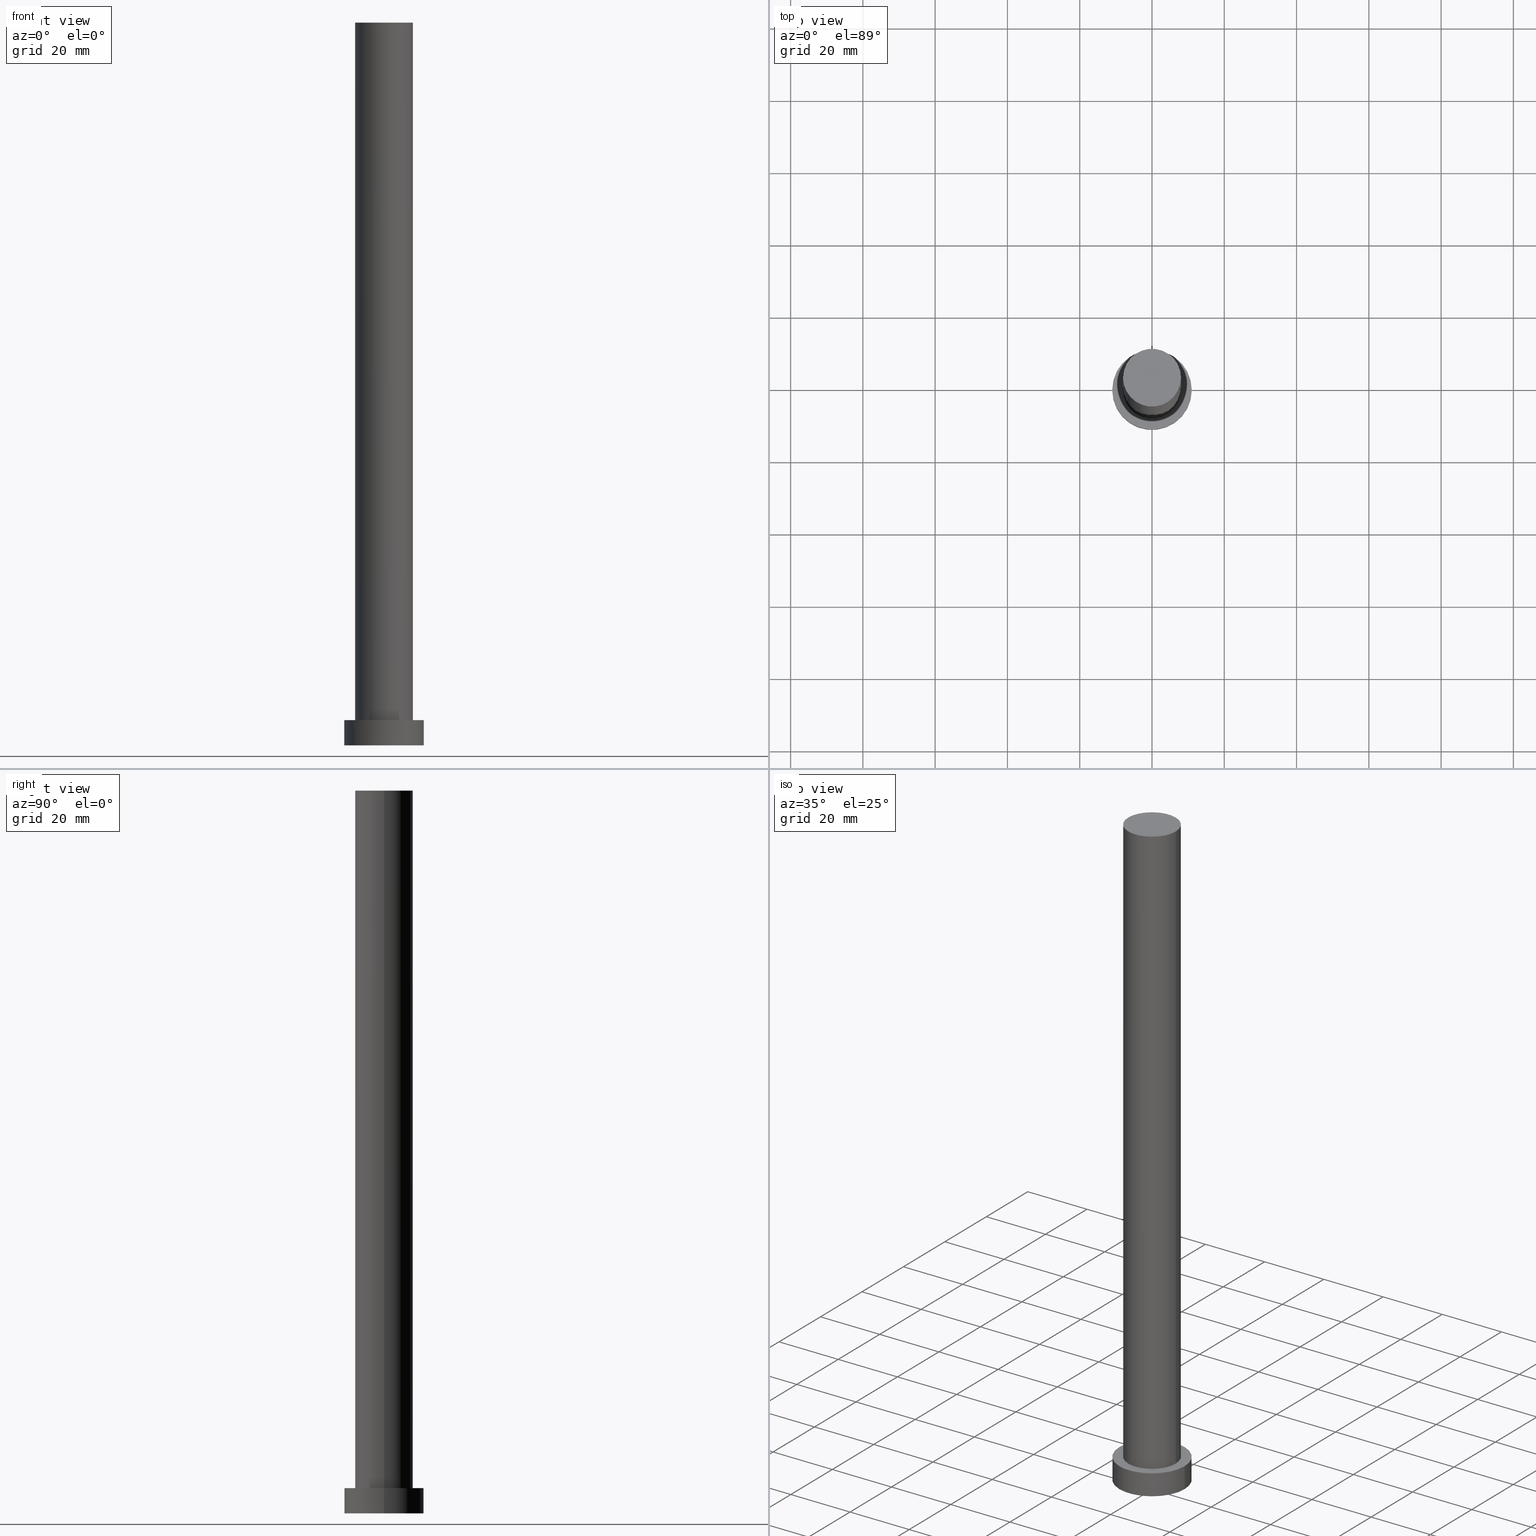
[diagram: canonical four-view strip — front | top / right | iso, engineering-drawing reading convention]
A machine part, canonical four-view strip (front | top / right | iso — engineering-drawing reading convention). The complete STEP part file that produces these views, byte-faithful:
ISO-10303-21;
HEADER;
FILE_DESCRIPTION (( 'STEP AP203' ),
    '1' );
FILE_NAME ('5168.STEP',
    '2023-02-13T08:52:57',
    ( '' ),
    ( '' ),
    'SwSTEP 2.0',
    'SolidWorks 2019',
    '' );
FILE_SCHEMA (( 'CONFIG_CONTROL_DESIGN' ));
ENDSEC;

DATA;
#1 = DATE_AND_TIME ( #185, #229 ) ;
#2 = PERSON_AND_ORGANIZATION_ROLE ( 'design_owner' ) ;
#3 = DIRECTION ( 'NONE',  ( 0.000000000000000000, 0.000000000000000000, 1.000000000000000000 ) ) ;
#4 = PRODUCT ( '5168', '5168', '', ( #144 ) ) ;
#5 = ORIENTED_EDGE ( 'NONE', *, *, #92, .T. ) ;
#6 = ADVANCED_FACE ( 'NONE', ( #61 ), #157, .T. ) ;
#7 = SECURITY_CLASSIFICATION ( '', '', #194 ) ;
#8 = CARTESIAN_POINT ( 'NONE',  ( 0.000000000000000000, 0.000000000000000000, 0.000000000000000000 ) ) ;
#9 = ORIENTED_EDGE ( 'NONE', *, *, #40, .T. ) ;
#10 = DATE_TIME_ROLE ( 'creation_date' ) ;
#11 = ORIENTED_EDGE ( 'NONE', *, *, #214, .T. ) ;
#12 = CALENDAR_DATE ( 2023, 13, 2 ) ;
#13 = CC_DESIGN_DATE_AND_TIME_ASSIGNMENT ( #30, #10, ( #128 ) ) ;
#14 = ADVANCED_BREP_SHAPE_REPRESENTATION ( '5168', ( #186, #238 ), #122 ) ;
#15 = ORIENTED_EDGE ( 'NONE', *, *, #149, .F. ) ;
#16 = VECTOR ( 'NONE', #179, 1000.000000000000000 ) ;
#17 = ORIENTED_EDGE ( 'NONE', *, *, #187, .T. ) ;
#18 = SHAPE_DEFINITION_REPRESENTATION ( #227, #14 ) ;
#19 = DIRECTION ( 'NONE',  ( 1.000000000000000000, 0.000000000000000000, 0.000000000000000000 ) ) ;
#20 = EDGE_CURVE ( 'NONE', #114, #151, #201, .T. ) ;
#21 = DIRECTION ( 'NONE',  ( -1.000000000000000000, 0.000000000000000000, 0.000000000000000000 ) ) ;
#22 = CARTESIAN_POINT ( 'NONE',  ( 0.000000000000000000, 0.000000000000000000, 7.000000000000000000 ) ) ;
#23 = AXIS2_PLACEMENT_3D ( 'NONE', #102, #251, #36 ) ;
#24 = CARTESIAN_POINT ( 'NONE',  ( 0.000000000000000000, 0.000000000000000000, 7.000000000000000000 ) ) ;
#25 = CARTESIAN_POINT ( 'NONE',  ( -8.000000000000000000, 0.000000000000000000, 200.0000000000000000 ) ) ;
#26 = APPROVAL_STATUS ( 'not_yet_approved' ) ;
#27 = ORIENTED_EDGE ( 'NONE', *, *, #246, .F. ) ;
#28 = ORIENTED_EDGE ( 'NONE', *, *, #187, .F. ) ;
#29 = VECTOR ( 'NONE', #177, 1000.000000000000000 ) ;
#30 = DATE_AND_TIME ( #50, #174 ) ;
#31 = ORIENTED_EDGE ( 'NONE', *, *, #58, .T. ) ;
#32 = LOCAL_TIME ( 9, 52, 57.00000000000000000, #71 ) ;
#33 = PERSON_AND_ORGANIZATION ( #197, #170 ) ;
#34 = CC_DESIGN_DATE_AND_TIME_ASSIGNMENT ( #138, #209, ( #7 ) ) ;
#35 = DIRECTION ( 'NONE',  ( 0.000000000000000000, 0.000000000000000000, 1.000000000000000000 ) ) ;
#36 = DIRECTION ( 'NONE',  ( 1.000000000000000000, 0.000000000000000000, -0.000000000000000000 ) ) ;
#37 = PERSON_AND_ORGANIZATION_ROLE ( 'classification_officer' ) ;
#38 = FACE_OUTER_BOUND ( 'NONE', #154, .T. ) ;
#39 = DIRECTION ( 'NONE',  ( 1.000000000000000000, 0.000000000000000000, 0.000000000000000000 ) ) ;
#40 = EDGE_CURVE ( 'NONE', #49, #176, #205, .T. ) ;
#41 = CYLINDRICAL_SURFACE ( 'NONE', #129, 8.000000000000000000 ) ;
#42 = APPROVAL_ROLE ( '' ) ;
#43 = APPROVAL_PERSON_ORGANIZATION ( #135, #223, #76 ) ;
#44 = CC_DESIGN_PERSON_AND_ORGANIZATION_ASSIGNMENT ( #33, #116, ( #56 ) ) ;
#45 = DIRECTION ( 'NONE',  ( 0.000000000000000000, 0.000000000000000000, 1.000000000000000000 ) ) ;
#46 = AXIS2_PLACEMENT_3D ( 'NONE', #22, #59, #165 ) ;
#47 = CC_DESIGN_PERSON_AND_ORGANIZATION_ASSIGNMENT ( #99, #156, ( #56 ) ) ;
#48 = DIRECTION ( 'NONE',  ( 0.000000000000000000, 0.000000000000000000, 1.000000000000000000 ) ) ;
#49 = VERTEX_POINT ( 'NONE', #230 ) ;
#50 = CALENDAR_DATE ( 2023, 13, 2 ) ;
#51 = UNCERTAINTY_MEASURE_WITH_UNIT (LENGTH_MEASURE( 1.000000000000000082E-05 ), #169, 'distance_accuracy_value', 'NONE');
#52 = ORIENTED_EDGE ( 'NONE', *, *, #214, .F. ) ;
#53 = VERTEX_POINT ( 'NONE', #78 ) ;
#54 = DESIGN_CONTEXT ( 'detailed design', #182, 'design' ) ;
#55 = EDGE_LOOP ( 'NONE', ( #175, #27 ) ) ;
#56 = PRODUCT_DEFINITION_FORMATION_WITH_SPECIFIED_SOURCE ( 'LIBOVOLN�', '', #4, .NOT_KNOWN. ) ;
#57 = COORDINATED_UNIVERSAL_TIME_OFFSET ( 1, 0, .AHEAD. ) ;
#58 = EDGE_CURVE ( 'NONE', #176, #49, #105, .T. ) ;
#59 = DIRECTION ( 'NONE',  ( -0.000000000000000000, -0.000000000000000000, -1.000000000000000000 ) ) ;
#60 = CARTESIAN_POINT ( 'NONE',  ( -11.00000000000000000, 0.000000000000000000, 7.000000000000000000 ) ) ;
#61 = FACE_OUTER_BOUND ( 'NONE', #173, .T. ) ;
#62 = PRODUCT_RELATED_PRODUCT_CATEGORY ( 'detail', '', ( #4 ) ) ;
#63 = ORIENTED_EDGE ( 'NONE', *, *, #92, .F. ) ;
#64 = DIRECTION ( 'NONE',  ( 0.000000000000000000, 0.000000000000000000, 1.000000000000000000 ) ) ;
#65 = DIRECTION ( 'NONE',  ( 1.000000000000000000, 0.000000000000000000, 0.000000000000000000 ) ) ;
#66 = FACE_BOUND ( 'NONE', #153, .T. ) ;
#67 = ADVANCED_FACE ( 'NONE', ( #161 ), #41, .T. ) ;
#68 = AXIS2_PLACEMENT_3D ( 'NONE', #77, #64, #39 ) ;
#69 = PLANE ( 'NONE',  #85 ) ;
#70 = ORIENTED_EDGE ( 'NONE', *, *, #199, .F. ) ;
#71 = COORDINATED_UNIVERSAL_TIME_OFFSET ( 1, 0, .AHEAD. ) ;
#72 = PERSON_AND_ORGANIZATION ( #197, #170 ) ;
#73 = VECTOR ( 'NONE', #117, 1000.000000000000000 ) ;
#74 = CALENDAR_DATE ( 2023, 13, 2 ) ;
#75 = FACE_OUTER_BOUND ( 'NONE', #193, .T. ) ;
#76 = APPROVAL_ROLE ( '' ) ;
#77 = CARTESIAN_POINT ( 'NONE',  ( 0.000000000000000000, 0.000000000000000000, 200.0000000000000000 ) ) ;
#78 = CARTESIAN_POINT ( 'NONE',  ( 11.00000000000000000, 1.347111479062088405E-15, 0.000000000000000000 ) ) ;
#79 = CARTESIAN_POINT ( 'NONE',  ( 8.000000000000000000, 9.797174393178825657E-16, 200.0000000000000000 ) ) ;
#80 = CIRCLE ( 'NONE', #220, 11.00000000000000000 ) ;
#81 = AXIS2_PLACEMENT_3D ( 'NONE', #101, #216, #234 ) ;
#82 = DIRECTION ( 'NONE',  ( -0.000000000000000000, -0.000000000000000000, -1.000000000000000000 ) ) ;
#83 = APPROVAL_DATE_TIME ( #1, #108 ) ;
#84 = DIRECTION ( 'NONE',  ( 1.000000000000000000, 0.000000000000000000, -0.000000000000000000 ) ) ;
#85 = AXIS2_PLACEMENT_3D ( 'NONE', #111, #45, #84 ) ;
#86 = CIRCLE ( 'NONE', #253, 11.00000000000000000 ) ;
#87 = DIRECTION ( 'NONE',  ( 0.000000000000000000, 0.000000000000000000, 1.000000000000000000 ) ) ;
#88 = APPLICATION_CONTEXT ( 'configuration controlled 3d designs of mechanical parts and assemblies' ) ;
#89 = APPROVAL_PERSON_ORGANIZATION ( #95, #108, #42 ) ;
#90 = AXIS2_PLACEMENT_3D ( 'NONE', #118, #141, #160 ) ;
#91 = EDGE_LOOP ( 'NONE', ( #70, #226, #98, #52 ) ) ;
#92 = EDGE_CURVE ( 'NONE', #176, #134, #232, .T. ) ;
#93 = APPROVAL_ROLE ( '' ) ;
#94 = ORIENTED_EDGE ( 'NONE', *, *, #20, .F. ) ;
#95 = PERSON_AND_ORGANIZATION ( #197, #170 ) ;
#96 = EDGE_LOOP ( 'NONE', ( #94, #188, #11, #17 ) ) ;
#97 = APPROVAL ( #26, 'NEUR�EN�' ) ;
#98 = ORIENTED_EDGE ( 'NONE', *, *, #237, .T. ) ;
#99 = PERSON_AND_ORGANIZATION ( #197, #170 ) ;
#100 = CARTESIAN_POINT ( 'NONE',  ( 0.000000000000000000, 0.000000000000000000, 7.000000000000000000 ) ) ;
#101 = CARTESIAN_POINT ( 'NONE',  ( 0.000000000000000000, 0.000000000000000000, 200.0000000000000000 ) ) ;
#102 = CARTESIAN_POINT ( 'NONE',  ( 0.000000000000000000, 0.000000000000000000, 200.0000000000000000 ) ) ;
#103 = PLANE ( 'NONE',  #23 ) ;
#104 = DIRECTION ( 'NONE',  ( 1.000000000000000000, 0.000000000000000000, 0.000000000000000000 ) ) ;
#105 = CIRCLE ( 'NONE', #189, 11.00000000000000000 ) ;
#106 = ADVANCED_FACE ( 'NONE', ( #139 ), #120, .T. ) ;
#107 = DIRECTION ( 'NONE',  ( 1.000000000000000000, 0.000000000000000000, 0.000000000000000000 ) ) ;
#108 = APPROVAL ( #172, 'NEUR�EN�' ) ;
#109 = CC_DESIGN_APPROVAL ( #223, ( #7 ) ) ;
#110 = ORIENTED_EDGE ( 'NONE', *, *, #246, .T. ) ;
#111 = CARTESIAN_POINT ( 'NONE',  ( 0.000000000000000000, 0.000000000000000000, 7.000000000000000000 ) ) ;
#112 = ORIENTED_EDGE ( 'NONE', *, *, #249, .T. ) ;
#113 = VERTEX_POINT ( 'NONE', #215 ) ;
#114 = VERTEX_POINT ( 'NONE', #198 ) ;
#115 = CLOSED_SHELL ( 'NONE', ( #67, #6, #119, #255, #228, #106, #206 ) ) ;
#116 = PERSON_AND_ORGANIZATION_ROLE ( 'creator' ) ;
#117 = DIRECTION ( 'NONE',  ( -0.000000000000000000, -0.000000000000000000, -1.000000000000000000 ) ) ;
#118 = CARTESIAN_POINT ( 'NONE',  ( 0.000000000000000000, 0.000000000000000000, 7.000000000000000000 ) ) ;
#119 = ADVANCED_FACE ( 'NONE', ( #38 ), #211, .T. ) ;
#120 = CYLINDRICAL_SURFACE ( 'NONE', #164, 8.000000000000000000 ) ;
#121 = AXIS2_PLACEMENT_3D ( 'NONE', #222, #3, #166 ) ;
#122 =( GEOMETRIC_REPRESENTATION_CONTEXT ( 3 ) GLOBAL_UNCERTAINTY_ASSIGNED_CONTEXT ( ( #51 ) ) GLOBAL_UNIT_ASSIGNED_CONTEXT ( ( #169, #146, #219 ) ) REPRESENTATION_CONTEXT ( 'NONE', 'WORKASPACE' ) );
#123 = LINE ( 'NONE', #140, #16 ) ;
#124 = CARTESIAN_POINT ( 'NONE',  ( 8.000000000000000000, 9.797174393178825657E-16, 7.000000000000000000 ) ) ;
#125 = PERSON_AND_ORGANIZATION_ROLE ( 'creator' ) ;
#126 = CC_DESIGN_APPROVAL ( #108, ( #56 ) ) ;
#127 = DIRECTION ( 'NONE',  ( 0.000000000000000000, 0.000000000000000000, 1.000000000000000000 ) ) ;
#128 = PRODUCT_DEFINITION ( 'NEZN�M�', '', #56, #54 ) ;
#129 = AXIS2_PLACEMENT_3D ( 'NONE', #231, #196, #21 ) ;
#130 = CARTESIAN_POINT ( 'NONE',  ( 0.000000000000000000, 0.000000000000000000, 0.000000000000000000 ) ) ;
#131 = ORIENTED_EDGE ( 'NONE', *, *, #237, .F. ) ;
#132 = FACE_OUTER_BOUND ( 'NONE', #243, .T. ) ;
#133 = APPROVAL_STATUS ( 'not_yet_approved' ) ;
#134 = VERTEX_POINT ( 'NONE', #178 ) ;
#135 = PERSON_AND_ORGANIZATION ( #197, #170 ) ;
#136 = VECTOR ( 'NONE', #200, 1000.000000000000000 ) ;
#137 = DIRECTION ( 'NONE',  ( 0.000000000000000000, 0.000000000000000000, 1.000000000000000000 ) ) ;
#138 = DATE_AND_TIME ( #74, #158 ) ;
#139 = FACE_OUTER_BOUND ( 'NONE', #96, .T. ) ;
#140 = CARTESIAN_POINT ( 'NONE',  ( 11.00000000000000000, 1.347111479062088405E-15, 7.000000000000000000 ) ) ;
#141 = DIRECTION ( 'NONE',  ( -0.000000000000000000, -0.000000000000000000, -1.000000000000000000 ) ) ;
#142 = CC_DESIGN_PERSON_AND_ORGANIZATION_ASSIGNMENT ( #236, #2, ( #4 ) ) ;
#143 = APPROVAL_DATE_TIME ( #152, #97 ) ;
#144 = MECHANICAL_CONTEXT ( 'NONE', #88, 'mechanical' ) ;
#145 = CC_DESIGN_SECURITY_CLASSIFICATION ( #7, ( #56 ) ) ;
#146 =( NAMED_UNIT ( * ) PLANE_ANGLE_UNIT ( ) SI_UNIT ( $, .RADIAN. ) );
#147 = APPROVAL_PERSON_ORGANIZATION ( #239, #97, #93 ) ;
#148 = AXIS2_PLACEMENT_3D ( 'NONE', #24, #250, #104 ) ;
#149 = EDGE_CURVE ( 'NONE', #49, #53, #123, .T. ) ;
#150 = DIRECTION ( 'NONE',  ( 0.000000000000000000, 0.000000000000000000, 1.000000000000000000 ) ) ;
#151 = VERTEX_POINT ( 'NONE', #124 ) ;
#152 = DATE_AND_TIME ( #171, #32 ) ;
#153 = EDGE_LOOP ( 'NONE', ( #28, #131 ) ) ;
#154 = EDGE_LOOP ( 'NONE', ( #15, #225, #5, #112 ) ) ;
#155 = VERTEX_POINT ( 'NONE', #25 ) ;
#156 = PERSON_AND_ORGANIZATION_ROLE ( 'design_supplier' ) ;
#157 = CYLINDRICAL_SURFACE ( 'NONE', #90, 11.00000000000000000 ) ;
#158 = LOCAL_TIME ( 9, 52, 57.00000000000000000, #57 ) ;
#159 = APPROVAL_DATE_TIME ( #212, #223 ) ;
#160 = DIRECTION ( 'NONE',  ( -1.000000000000000000, 0.000000000000000000, 0.000000000000000000 ) ) ;
#161 = FACE_OUTER_BOUND ( 'NONE', #91, .T. ) ;
#162 = DIRECTION ( 'NONE',  ( -1.000000000000000000, 0.000000000000000000, 0.000000000000000000 ) ) ;
#163 = EDGE_CURVE ( 'NONE', #155, #114, #192, .T. ) ;
#164 = AXIS2_PLACEMENT_3D ( 'NONE', #213, #82, #162 ) ;
#165 = DIRECTION ( 'NONE',  ( -1.000000000000000000, 0.000000000000000000, 0.000000000000000000 ) ) ;
#166 = DIRECTION ( 'NONE',  ( 1.000000000000000000, 0.000000000000000000, 0.000000000000000000 ) ) ;
#167 = APPLICATION_PROTOCOL_DEFINITION ( 'international standard', 'config_control_design', 1994, #182 ) ;
#168 = CIRCLE ( 'NONE', #121, 8.000000000000000000 ) ;
#169 =( LENGTH_UNIT ( ) NAMED_UNIT ( * ) SI_UNIT ( .MILLI., .METRE. ) );
#170 = ORGANIZATION ( 'NEUR�EN�', 'NEUR�EN�', '' ) ;
#171 = CALENDAR_DATE ( 2023, 13, 2 ) ;
#172 = APPROVAL_STATUS ( 'not_yet_approved' ) ;
#173 = EDGE_LOOP ( 'NONE', ( #241, #191, #110, #63 ) ) ;
#174 = LOCAL_TIME ( 9, 52, 57.00000000000000000, #224 ) ;
#175 = ORIENTED_EDGE ( 'NONE', *, *, #249, .F. ) ;
#176 = VERTEX_POINT ( 'NONE', #248 ) ;
#177 = DIRECTION ( 'NONE',  ( -0.000000000000000000, -0.000000000000000000, -1.000000000000000000 ) ) ;
#178 = CARTESIAN_POINT ( 'NONE',  ( -11.00000000000000000, 0.000000000000000000, 0.000000000000000000 ) ) ;
#179 = DIRECTION ( 'NONE',  ( -0.000000000000000000, -0.000000000000000000, -1.000000000000000000 ) ) ;
#180 = CC_DESIGN_PERSON_AND_ORGANIZATION_ASSIGNMENT ( #217, #125, ( #128 ) ) ;
#181 = LINE ( 'NONE', #210, #73 ) ;
#182 = APPLICATION_CONTEXT ( 'configuration controlled 3d designs of mechanical parts and assemblies' ) ;
#183 = DIRECTION ( 'NONE',  ( 1.000000000000000000, 0.000000000000000000, 0.000000000000000000 ) ) ;
#184 = CIRCLE ( 'NONE', #68, 8.000000000000000000 ) ;
#185 = CALENDAR_DATE ( 2023, 13, 2 ) ;
#186 = MANIFOLD_SOLID_BREP ( 'P�idat vysunut�m3', #115 ) ;
#187 = EDGE_CURVE ( 'NONE', #113, #151, #221, .T. ) ;
#188 = ORIENTED_EDGE ( 'NONE', *, *, #163, .F. ) ;
#189 = AXIS2_PLACEMENT_3D ( 'NONE', #100, #137, #19 ) ;
#190 = DIRECTION ( 'NONE',  ( 1.000000000000000000, 0.000000000000000000, -0.000000000000000000 ) ) ;
#191 = ORIENTED_EDGE ( 'NONE', *, *, #149, .T. ) ;
#192 = CIRCLE ( 'NONE', #81, 8.000000000000000000 ) ;
#193 = EDGE_LOOP ( 'NONE', ( #247, #207 ) ) ;
#194 = SECURITY_CLASSIFICATION_LEVEL ( 'unclassified' ) ;
#195 = PLANE ( 'NONE',  #240 ) ;
#196 = DIRECTION ( 'NONE',  ( -0.000000000000000000, -0.000000000000000000, -1.000000000000000000 ) ) ;
#197 = PERSON ( 'NEUR�EN�', 'NEUR�EN�', 'NEUR�EN�', ('NEUR�EN�'), ('NEUR�EN�'), ('NEUR�EN�') ) ;
#198 = CARTESIAN_POINT ( 'NONE',  ( 8.000000000000000000, 9.797174393178825657E-16, 200.0000000000000000 ) ) ;
#199 = EDGE_CURVE ( 'NONE', #114, #155, #184, .T. ) ;
#200 = DIRECTION ( 'NONE',  ( -0.000000000000000000, -0.000000000000000000, -1.000000000000000000 ) ) ;
#201 = LINE ( 'NONE', #79, #136 ) ;
#202 = COORDINATED_UNIVERSAL_TIME_OFFSET ( 1, 0, .AHEAD. ) ;
#203 = AXIS2_PLACEMENT_3D ( 'NONE', #254, #35, #183 ) ;
#204 = DIRECTION ( 'NONE',  ( 1.000000000000000000, 0.000000000000000000, 0.000000000000000000 ) ) ;
#205 = CIRCLE ( 'NONE', #203, 11.00000000000000000 ) ;
#206 = ADVANCED_FACE ( 'NONE', ( #75 ), #103, .T. ) ;
#207 = ORIENTED_EDGE ( 'NONE', *, *, #199, .T. ) ;
#208 = COORDINATED_UNIVERSAL_TIME_OFFSET ( 1, 0, .AHEAD. ) ;
#209 = DATE_TIME_ROLE ( 'classification_date' ) ;
#210 = CARTESIAN_POINT ( 'NONE',  ( -8.000000000000000000, 0.000000000000000000, 200.0000000000000000 ) ) ;
#211 = CYLINDRICAL_SURFACE ( 'NONE', #46, 11.00000000000000000 ) ;
#212 = DATE_AND_TIME ( #12, #218 ) ;
#213 = CARTESIAN_POINT ( 'NONE',  ( 0.000000000000000000, 0.000000000000000000, 200.0000000000000000 ) ) ;
#214 = EDGE_CURVE ( 'NONE', #155, #113, #181, .T. ) ;
#215 = CARTESIAN_POINT ( 'NONE',  ( -8.000000000000000000, 0.000000000000000000, 7.000000000000000000 ) ) ;
#216 = DIRECTION ( 'NONE',  ( 0.000000000000000000, 0.000000000000000000, 1.000000000000000000 ) ) ;
#217 = PERSON_AND_ORGANIZATION ( #197, #170 ) ;
#218 = LOCAL_TIME ( 9, 52, 57.00000000000000000, #208 ) ;
#219 =( NAMED_UNIT ( * ) SI_UNIT ( $, .STERADIAN. ) SOLID_ANGLE_UNIT ( ) );
#220 = AXIS2_PLACEMENT_3D ( 'NONE', #242, #150, #107 ) ;
#221 = CIRCLE ( 'NONE', #148, 8.000000000000000000 ) ;
#222 = CARTESIAN_POINT ( 'NONE',  ( 0.000000000000000000, 0.000000000000000000, 7.000000000000000000 ) ) ;
#223 = APPROVAL ( #133, 'NEUR�EN�' ) ;
#224 = COORDINATED_UNIVERSAL_TIME_OFFSET ( 1, 0, .AHEAD. ) ;
#225 = ORIENTED_EDGE ( 'NONE', *, *, #58, .F. ) ;
#226 = ORIENTED_EDGE ( 'NONE', *, *, #20, .T. ) ;
#227 = PRODUCT_DEFINITION_SHAPE ( 'NONE', 'NONE',  #128 ) ;
#228 = ADVANCED_FACE ( 'NONE', ( #252 ), #195, .F. ) ;
#229 = LOCAL_TIME ( 9, 52, 57.00000000000000000, #202 ) ;
#230 = CARTESIAN_POINT ( 'NONE',  ( 11.00000000000000000, 1.347111479062088405E-15, 7.000000000000000000 ) ) ;
#231 = CARTESIAN_POINT ( 'NONE',  ( 0.000000000000000000, 0.000000000000000000, 200.0000000000000000 ) ) ;
#232 = LINE ( 'NONE', #60, #29 ) ;
#233 = CARTESIAN_POINT ( 'NONE',  ( 0.000000000000000000, 0.000000000000000000, 0.000000000000000000 ) ) ;
#234 = DIRECTION ( 'NONE',  ( 1.000000000000000000, 0.000000000000000000, 0.000000000000000000 ) ) ;
#235 = CC_DESIGN_PERSON_AND_ORGANIZATION_ASSIGNMENT ( #72, #37, ( #7 ) ) ;
#236 = PERSON_AND_ORGANIZATION ( #197, #170 ) ;
#237 = EDGE_CURVE ( 'NONE', #151, #113, #168, .T. ) ;
#238 = AXIS2_PLACEMENT_3D ( 'NONE', #8, #127, #65 ) ;
#239 = PERSON_AND_ORGANIZATION ( #197, #170 ) ;
#240 = AXIS2_PLACEMENT_3D ( 'NONE', #233, #87, #190 ) ;
#241 = ORIENTED_EDGE ( 'NONE', *, *, #40, .F. ) ;
#242 = CARTESIAN_POINT ( 'NONE',  ( 0.000000000000000000, 0.000000000000000000, 0.000000000000000000 ) ) ;
#243 = EDGE_LOOP ( 'NONE', ( #31, #9 ) ) ;
#244 = APPLICATION_PROTOCOL_DEFINITION ( 'international standard', 'config_control_design', 1994, #88 ) ;
#245 = CC_DESIGN_APPROVAL ( #97, ( #128 ) ) ;
#246 = EDGE_CURVE ( 'NONE', #53, #134, #80, .T. ) ;
#247 = ORIENTED_EDGE ( 'NONE', *, *, #163, .T. ) ;
#248 = CARTESIAN_POINT ( 'NONE',  ( -11.00000000000000000, 0.000000000000000000, 7.000000000000000000 ) ) ;
#249 = EDGE_CURVE ( 'NONE', #134, #53, #86, .T. ) ;
#250 = DIRECTION ( 'NONE',  ( 0.000000000000000000, 0.000000000000000000, 1.000000000000000000 ) ) ;
#251 = DIRECTION ( 'NONE',  ( 0.000000000000000000, 0.000000000000000000, 1.000000000000000000 ) ) ;
#252 = FACE_OUTER_BOUND ( 'NONE', #55, .T. ) ;
#253 = AXIS2_PLACEMENT_3D ( 'NONE', #130, #48, #204 ) ;
#254 = CARTESIAN_POINT ( 'NONE',  ( 0.000000000000000000, 0.000000000000000000, 7.000000000000000000 ) ) ;
#255 = ADVANCED_FACE ( 'NONE', ( #66, #132 ), #69, .T. ) ;
ENDSEC;
END-ISO-10303-21;
